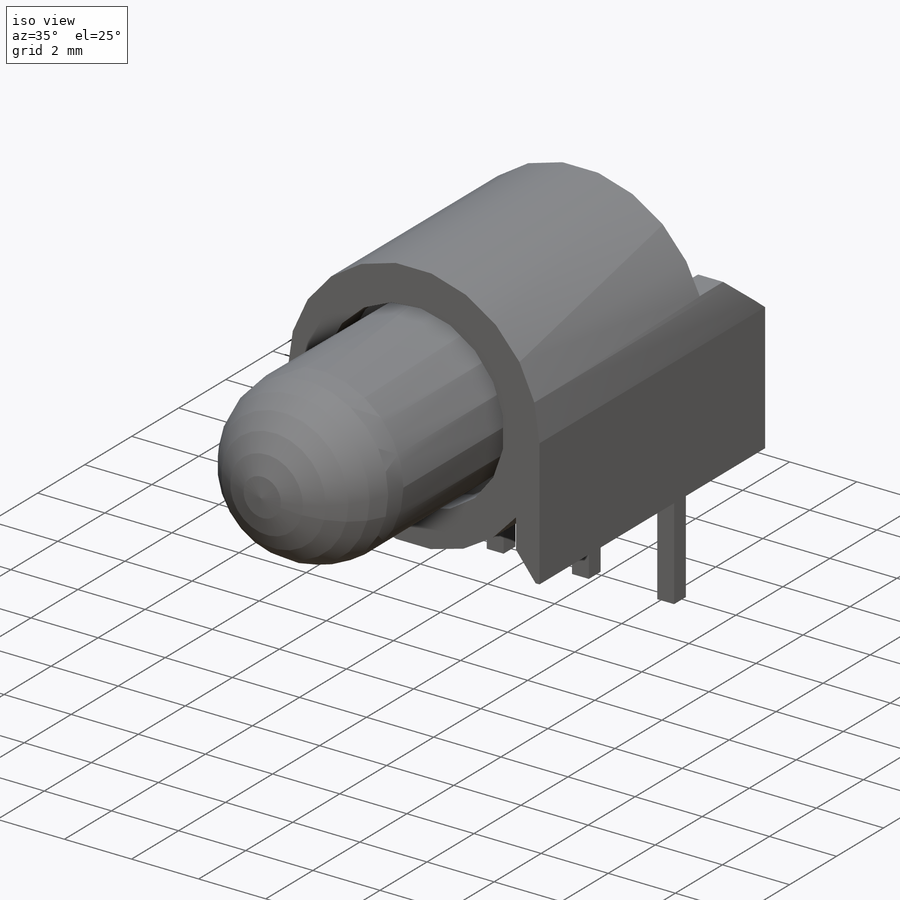
[diagram: iso view]
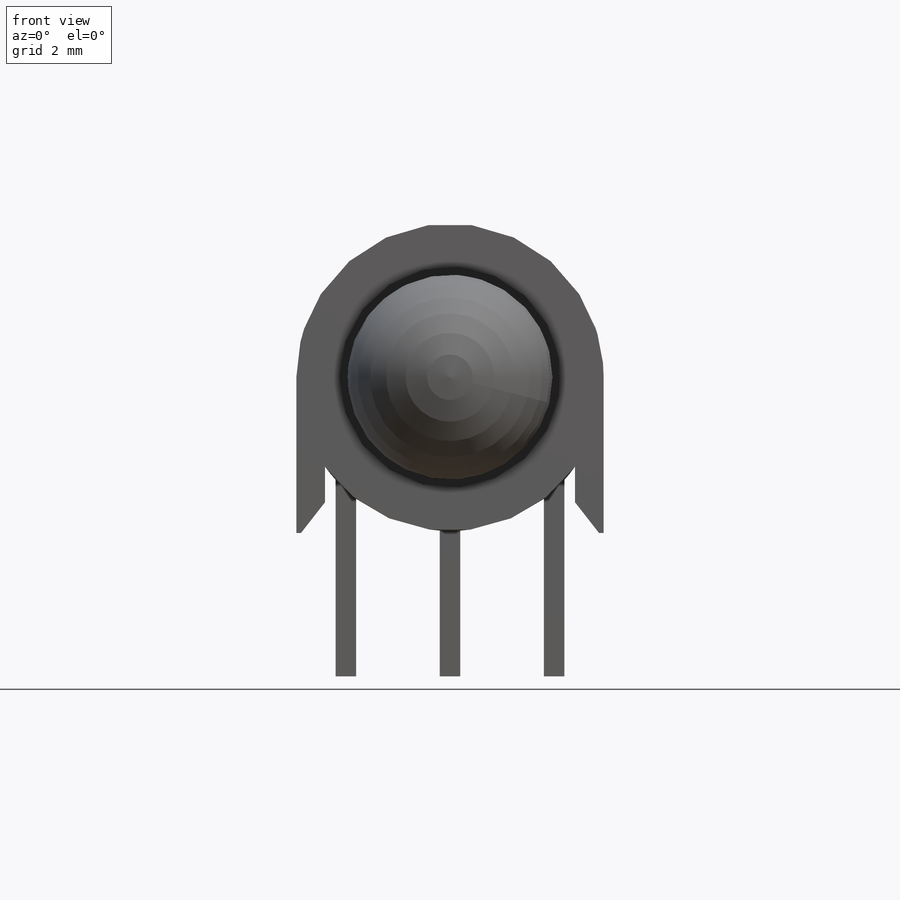
[diagram: front view]
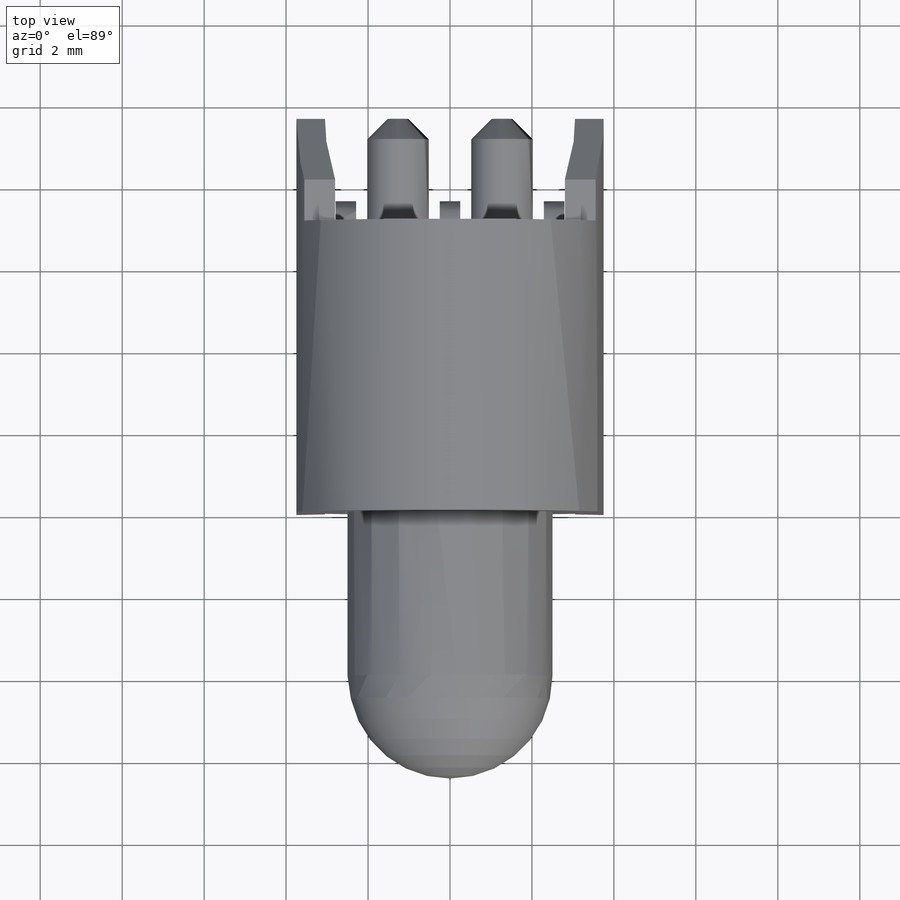
[diagram: top view]
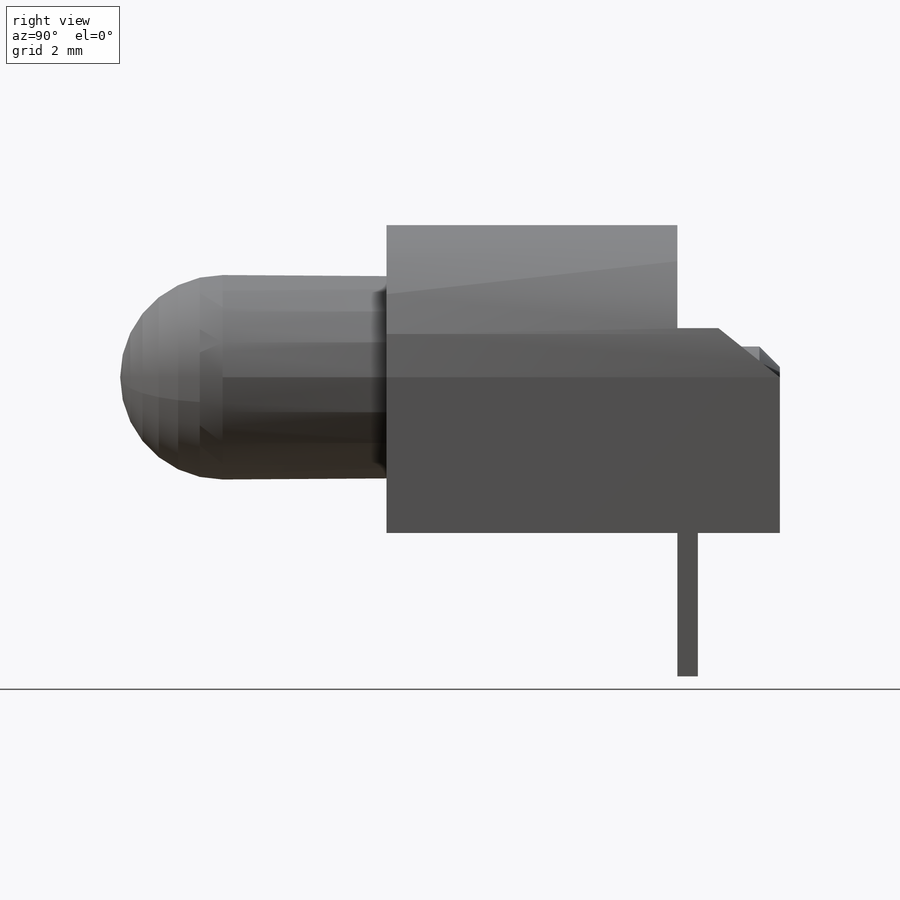
[diagram: right view]
SOLIDWORKS PART (.sldprt)
format: sldprt  version: not decoded by parser v0  size: 775,168 bytes
history: native  units: mm
features: sketch x8, extrude x4, cut_extrude x2, material x1, revolve x1, chamfer x1, fillet x1, cut_revolve x1 (+12 scaffold rows collapsed)
feature tree (31):
  scaffold x12  (default folders/planes/origin — collapsed)
  material  "Material <not specified>"
  sketch  "Sketch1"  dims[c1.D3=7.5mm c1.D5=6.1mm c1.D1=7.6mm c1.D2=7.5mm c1.D4=~0.700007mm c2.D4=52.0deg c2.D2=3.8mm c3.D2=128.0deg]
  extrude  "Extrude1"  Depth=7.1mm
  sketch  "Sketch2"  dims[D1=2.5mm D2=6.5mm D3=0.2mm D4=1.0mm]
  revolve  "Revolve3"  Angle=360deg
  sketch  "Sketch4"  dims[D7=1.5mm D1=5.0mm D2=5.0mm D3=2.54mm D4=2.54mm D5=3.5mm D6=0.5mm]
  extrude  "Extrude2"  Depth=2.5mm
  sketch  "Sketch5"  dims[D1=1.0mm D2=3.8mm]
  cut_extrude  "Cut-Extrude1"  [1 undecoded]
  extrude  "Extrude3"  [1 undecoded]
  sketch  "Sketch4<3>"  dims[D1=0.5mm]
  extrude  "Extrude4"  [1 undecoded]
  sketch  "Sketch4<4>"  dims[D1=2.5mm]
  chamfer  "Chamfer3"  Distance=0.5mm Angle=45deg
  fillet  "Fillet1"  Radius=0.5mm
  cut_revolve  "Cut-Revolve1"  [1 undecoded]
  sketch  "Sketch2<6>"  dims[D1=360.0deg]
  sketch  "Sketch6"
  cut_extrude  "Cut-Extrude2"  Depth=0.01mm
decode coverage: 13 of 18 modeling features carry decoded parameters
note: ~ marks probable driven/reference dimensions
note: 4 parameter values undecoded
summary: no parameter record found for 4 features
note: suppression state not decoded; provenance and decode notes live in map.json
